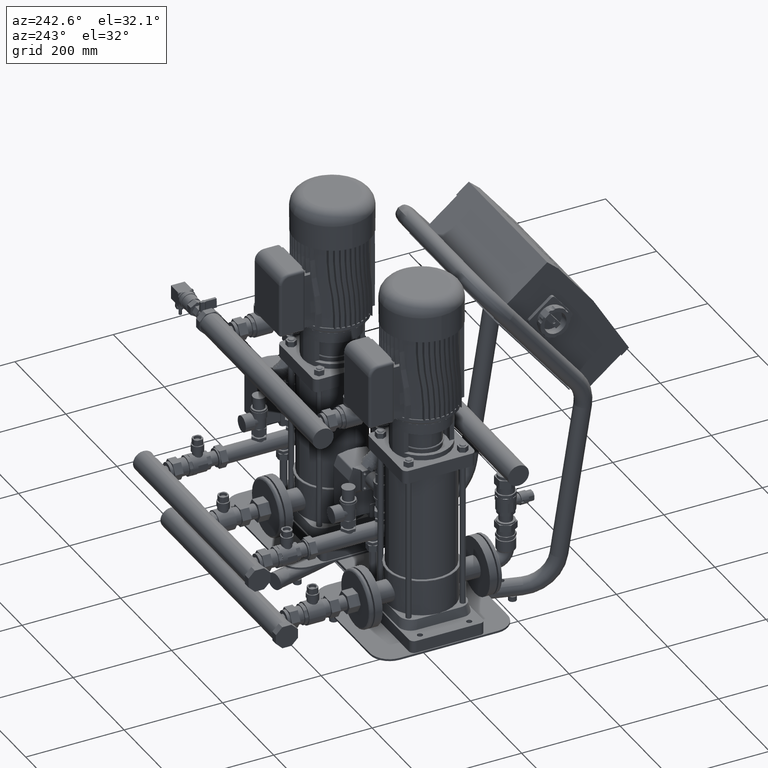
[diagram: clean part render]
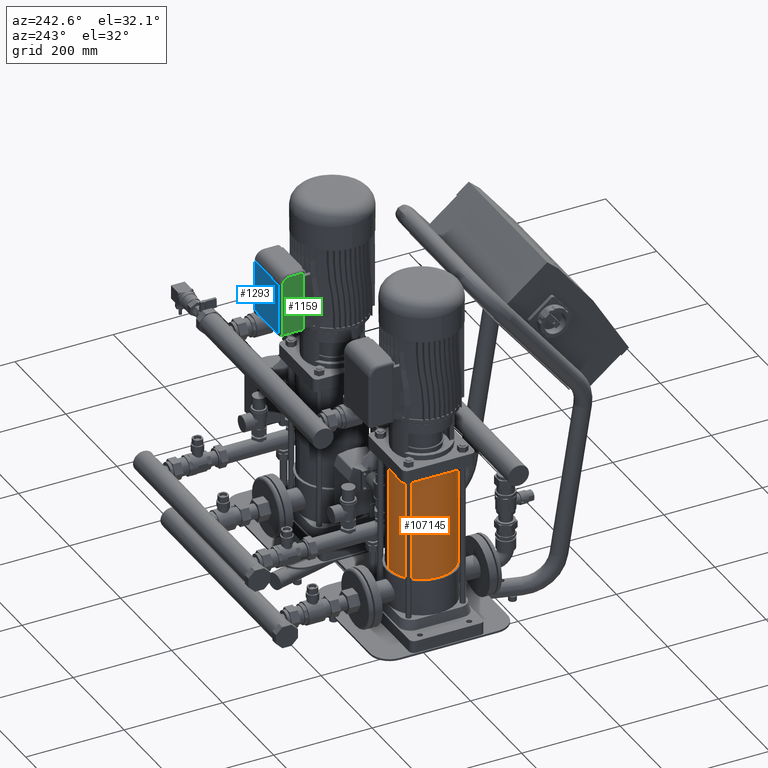
[diagram: same view with three faces highlighted in distinct colors, each labeled with its STEP entity id]
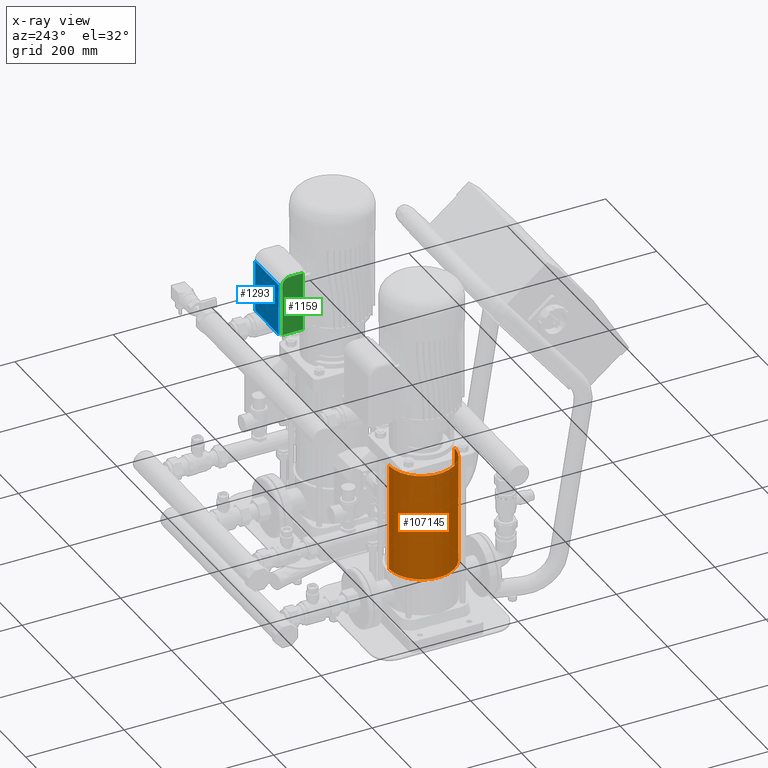
[diagram: x-ray of the same camera — body ghosted, the three highlighted faces saturated]
A machine part, auxiliary view with three faces highlighted in distinct colors.
The next image is the same camera in x-ray (body ghosted, the three faces saturated) — at least one of them is partly hidden behind the body in this view.
Their STEP definitions:

[orange] entity #107145 — the highlighted cylindrical surface (partial cylindrical patch) has radius 66.5 mm, axis along (-0, -0, 1).
#107065=CARTESIAN_POINT('',(-208.0,66.499999999999957,393.0));
#107066=VERTEX_POINT('',#107065);
#107067=CARTESIAN_POINT('',(-208.0,66.500000000000000,173.0));
#107068=VERTEX_POINT('',#107067);
#107069=CARTESIAN_POINT('',(-208.0,66.499999999999957,393.0));
#107070=DIRECTION('',(0.0,0.0,-1.0));
#107071=VECTOR('',#107070,220.0);
#107072=LINE('',#107069,#107071);
#107073=EDGE_CURVE('',#107066,#107068,#107072,.T.);
#107075=CARTESIAN_POINT('',(-208.0,-66.500000000000057,393.0));
#107076=VERTEX_POINT('',#107075);
#107084=CARTESIAN_POINT('',(-208.0,-66.500000000000014,172.999999999999970));
#107085=VERTEX_POINT('',#107084);
#107086=CARTESIAN_POINT('',(-208.0,-66.500000000000057,393.0));
#107087=DIRECTION('',(0.0,0.0,-1.0));
#107088=VECTOR('',#107087,220.000000000000030);
#107089=LINE('',#107086,#107088);
#107090=EDGE_CURVE('',#107076,#107085,#107089,.T.);
#107107=CARTESIAN_POINT('',(-208.0,-5.114924E-014,393.0));
#107108=DIRECTION('',(0.0,0.0,-1.0));
#107109=DIRECTION('',(0.0,1.0,0.0));
#107110=AXIS2_PLACEMENT_3D('',#107107,#107108,#107109);
#107111=CIRCLE('',#107110,66.500000000000000);
#107112=EDGE_CURVE('',#107076,#107066,#107111,.T.);
#107123=CARTESIAN_POINT('',(-208.0,-6.740315E-015,173.0));
#107124=DIRECTION('',(0.0,0.0,-1.0));
#107125=DIRECTION('',(0.0,1.0,0.0));
#107126=AXIS2_PLACEMENT_3D('',#107123,#107124,#107125);
#107127=CIRCLE('',#107126,66.500000000000000);
#107128=EDGE_CURVE('',#107085,#107068,#107127,.T.);
#107134=CARTESIAN_POINT('',(-208.0,-6.740315E-015,173.0));
#107135=DIRECTION('',(-3.708085E-032,-2.018587E-016,1.0));
#107136=DIRECTION('',(0.0,1.0,0.0));
#107137=AXIS2_PLACEMENT_3D('',#107134,#107135,#107136);
#107138=CYLINDRICAL_SURFACE('',#107137,66.500000000000000);
#107139=ORIENTED_EDGE('',*,*,#107073,.T.);
#107140=ORIENTED_EDGE('',*,*,#107128,.F.);
#107141=ORIENTED_EDGE('',*,*,#107090,.F.);
#107142=ORIENTED_EDGE('',*,*,#107112,.T.);
#107143=EDGE_LOOP('',(#107139,#107140,#107141,#107142));
#107144=FACE_OUTER_BOUND('',#107143,.T.);
#107145=ADVANCED_FACE('',(#107144),#107138,.T.);

[blue] entity #1293 — the highlighted planar face has unit normal (0, 1, 0).
#1183=CARTESIAN_POINT('',(96.000000000000227,133.0,522.0));
#1184=VERTEX_POINT('',#1183);
#1192=CARTESIAN_POINT('',(188.000000000000280,133.0,522.0));
#1193=VERTEX_POINT('',#1192);
#1194=CARTESIAN_POINT('',(96.000000000000227,133.0,522.0));
#1195=DIRECTION('',(1.0,0.0,0.0));
#1196=VECTOR('',#1195,92.000000000000057);
#1197=LINE('',#1194,#1196);
#1198=EDGE_CURVE('',#1184,#1193,#1197,.T.);
#1251=CARTESIAN_POINT('',(188.000000000000280,133.0,627.0));
#1252=VERTEX_POINT('',#1251);
#1253=CARTESIAN_POINT('',(188.000000000000280,133.0,522.0));
#1254=DIRECTION('',(0.0,0.0,1.0));
#1255=VECTOR('',#1254,105.0);
#1256=LINE('',#1253,#1255);
#1257=EDGE_CURVE('',#1193,#1252,#1256,.T.);
#1270=CARTESIAN_POINT('',(142.000000000000280,133.0,582.0));
#1271=DIRECTION('',(0.0,1.0,0.0));
#1272=DIRECTION('',(0.0,0.0,-1.0));
#1273=AXIS2_PLACEMENT_3D('',#1270,#1271,#1272);
#1274=PLANE('',#1273);
#1275=ORIENTED_EDGE('',*,*,#1198,.F.);
#1276=CARTESIAN_POINT('',(96.000000000000227,133.0,627.0));
#1277=VERTEX_POINT('',#1276);
#1278=CARTESIAN_POINT('',(96.000000000000227,133.0,627.0));
#1279=DIRECTION('',(0.0,0.0,-1.0));
#1280=VECTOR('',#1279,105.0);
#1281=LINE('',#1278,#1280);
#1282=EDGE_CURVE('',#1277,#1184,#1281,.T.);
#1283=ORIENTED_EDGE('',*,*,#1282,.F.);
#1284=CARTESIAN_POINT('',(188.000000000000280,133.0,627.0));
#1285=DIRECTION('',(-1.0,0.0,0.0));
#1286=VECTOR('',#1285,92.000000000000057);
#1287=LINE('',#1284,#1286);
#1288=EDGE_CURVE('',#1252,#1277,#1287,.T.);
#1289=ORIENTED_EDGE('',*,*,#1288,.F.);
#1290=ORIENTED_EDGE('',*,*,#1257,.F.);
#1291=EDGE_LOOP('',(#1275,#1283,#1289,#1290));
#1292=FACE_OUTER_BOUND('',#1291,.T.);
#1293=ADVANCED_FACE('',(#1292),#1274,.T.);

[green] entity #1159 — the highlighted planar face has unit normal (-1, 0, 0).
#895=CARTESIAN_POINT('',(91.000000000000227,85.999999999999986,522.0));
#896=VERTEX_POINT('',#895);
#912=CARTESIAN_POINT('',(91.000000000000227,85.999999999999986,642.0));
#913=VERTEX_POINT('',#912);
#921=CARTESIAN_POINT('',(91.000000000000227,85.999999999999986,642.0));
#922=DIRECTION('',(0.0,0.0,-1.0));
#923=VECTOR('',#922,120.0);
#924=LINE('',#921,#923);
#925=EDGE_CURVE('',#913,#896,#924,.T.);
#1108=CARTESIAN_POINT('',(91.000000000000227,128.0,522.0));
#1109=VERTEX_POINT('',#1108);
#1110=CARTESIAN_POINT('',(91.000000000000227,85.999999999999986,522.0));
#1111=DIRECTION('',(0.0,1.0,0.0));
#1112=VECTOR('',#1111,42.000000000000014);
#1113=LINE('',#1110,#1112);
#1114=EDGE_CURVE('',#896,#1109,#1113,.T.);
#1127=CARTESIAN_POINT('',(91.000000000000227,81.000000000000071,647.0));
#1128=DIRECTION('',(-1.0,0.0,0.0));
#1129=DIRECTION('',(0.0,1.0,0.0));
#1130=AXIS2_PLACEMENT_3D('',#1127,#1128,#1129);
#1131=PLANE('',#1130);
#1132=ORIENTED_EDGE('',*,*,#925,.F.);
#1133=CARTESIAN_POINT('',(91.000000000000227,113.000000000000040,642.0));
#1134=VERTEX_POINT('',#1133);
#1135=CARTESIAN_POINT('',(91.000000000000227,113.000000000000040,642.0));
#1136=DIRECTION('',(0.0,-1.0,0.0));
#1137=VECTOR('',#1136,27.000000000000057);
#1138=LINE('',#1135,#1137);
#1139=EDGE_CURVE('',#1134,#913,#1138,.T.);
#1140=ORIENTED_EDGE('',*,*,#1139,.F.);
#1141=CARTESIAN_POINT('',(91.000000000000227,128.0,627.0));
#1142=VERTEX_POINT('',#1141);
#1143=CARTESIAN_POINT('',(91.000000000000227,113.000000000000040,627.0));
#1144=DIRECTION('',(1.0,-1.117083E-016,-1.117083E-016));
#1145=DIRECTION('',(1.579793E-016,0.707106781186548,0.707106781186547));
#1146=AXIS2_PLACEMENT_3D('',#1143,#1144,#1145);
#1147=CIRCLE('',#1146,14.999999999999998);
#1148=EDGE_CURVE('',#1142,#1134,#1147,.T.);
#1149=ORIENTED_EDGE('',*,*,#1148,.F.);
#1150=CARTESIAN_POINT('',(91.000000000000227,128.0,522.0));
#1151=DIRECTION('',(0.0,0.0,1.0));
#1152=VECTOR('',#1151,105.0);
#1153=LINE('',#1150,#1152);
#1154=EDGE_CURVE('',#1109,#1142,#1153,.T.);
#1155=ORIENTED_EDGE('',*,*,#1154,.F.);
#1156=ORIENTED_EDGE('',*,*,#1114,.F.);
#1157=EDGE_LOOP('',(#1132,#1140,#1149,#1155,#1156));
#1158=FACE_OUTER_BOUND('',#1157,.T.);
#1159=ADVANCED_FACE('',(#1158),#1131,.T.);